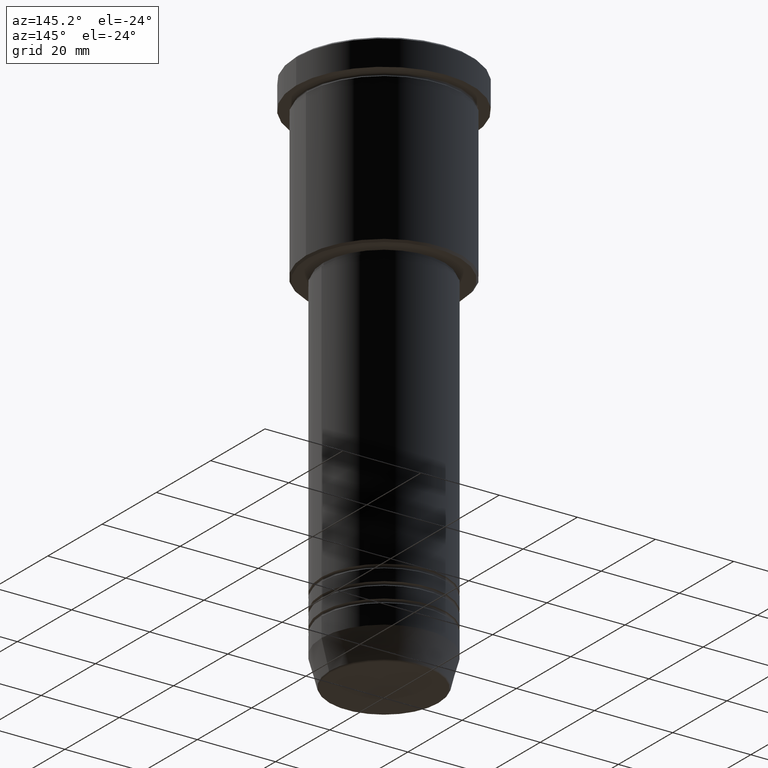
[diagram: clean part render]
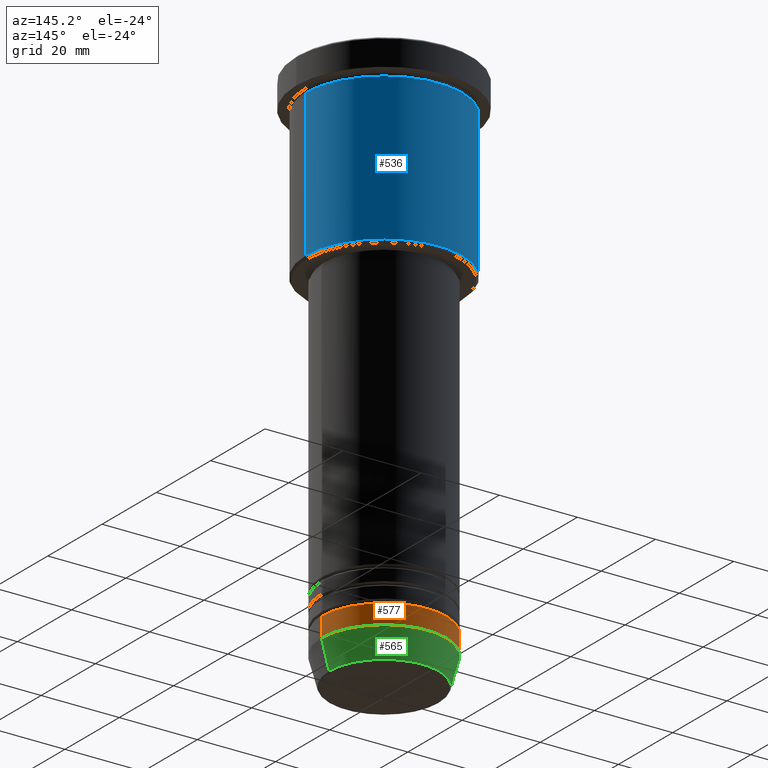
[diagram: same view with three faces highlighted in distinct colors, each labeled with its STEP entity id]
A machine part, auxiliary view with three faces highlighted in distinct colors.
Their STEP definitions:

[orange] entity #577 — the highlighted cylindrical surface (partial cylindrical patch) has radius 16 mm, axis along (-0, -0, 1).
#31 = DIRECTION ( 'NONE',  ( -0.000000000000000000, -0.000000000000000000, 1.000000000000000000 ) ) ;
#35 = ORIENTED_EDGE ( 'NONE', *, *, #638, .T. ) ;
#92 = FACE_OUTER_BOUND ( 'NONE', #1034, .T. ) ;
#139 = CARTESIAN_POINT ( 'NONE',  ( 0.000000000000000000, 0.000000000000000000, -127.5000000000000000 ) ) ;
#183 = AXIS2_PLACEMENT_3D ( 'NONE', #1097, #300, #394 ) ;
#193 = LINE ( 'NONE', #294, #977 ) ;
#199 = EDGE_CURVE ( 'NONE', #696, #1171, #235, .T. ) ;
#208 = CARTESIAN_POINT ( 'NONE',  ( 16.00000000000000000, 0.000000000000000000, 0.000000000000000000 ) ) ;
#211 = CARTESIAN_POINT ( 'NONE',  ( 0.000000000000000000, 0.000000000000000000, -132.5000000000000000 ) ) ;
#212 = EDGE_CURVE ( 'NONE', #1089, #696, #1138, .T. ) ;
#235 = CIRCLE ( 'NONE', #632, 16.00000000000000000 ) ;
#257 = DIRECTION ( 'NONE',  ( -0.000000000000000000, -0.000000000000000000, 1.000000000000000000 ) ) ;
#262 = ORIENTED_EDGE ( 'NONE', *, *, #212, .F. ) ;
#294 = CARTESIAN_POINT ( 'NONE',  ( -16.00000000000000000, 1.959434878635765131E-15, 0.000000000000000000 ) ) ;
#300 = DIRECTION ( 'NONE',  ( -0.000000000000000000, -0.000000000000000000, 1.000000000000000000 ) ) ;
#313 = CARTESIAN_POINT ( 'NONE',  ( 16.00000000000000000, 0.000000000000000000, -132.5000000000000000 ) ) ;
#321 = EDGE_CURVE ( 'NONE', #1162, #1171, #193, .T. ) ;
#389 = CYLINDRICAL_SURFACE ( 'NONE', #183, 16.00000000000000000 ) ;
#394 = DIRECTION ( 'NONE',  ( 1.000000000000000000, 0.000000000000000000, 0.000000000000000000 ) ) ;
#398 = CARTESIAN_POINT ( 'NONE',  ( -16.00000000000000000, 1.959434878635765131E-15, -132.5000000000000000 ) ) ;
#400 = DIRECTION ( 'NONE',  ( -0.000000000000000000, -0.000000000000000000, 1.000000000000000000 ) ) ;
#491 = CARTESIAN_POINT ( 'NONE',  ( 16.00000000000000000, 0.000000000000000000, -127.5000000000000000 ) ) ;
#550 = VECTOR ( 'NONE', #31, 1000.000000000000000 ) ;
#564 = AXIS2_PLACEMENT_3D ( 'NONE', #211, #575, #571 ) ;
#571 = DIRECTION ( 'NONE',  ( 1.000000000000000000, 0.000000000000000000, 0.000000000000000000 ) ) ;
#575 = DIRECTION ( 'NONE',  ( -0.000000000000000000, -0.000000000000000000, 1.000000000000000000 ) ) ;
#577 = ADVANCED_FACE ( 'NONE', ( #92 ), #389, .T. ) ;
#610 = ORIENTED_EDGE ( 'NONE', *, *, #199, .F. ) ;
#632 = AXIS2_PLACEMENT_3D ( 'NONE', #139, #257, #878 ) ;
#638 = EDGE_CURVE ( 'NONE', #1089, #1162, #722, .T. ) ;
#650 = ORIENTED_EDGE ( 'NONE', *, *, #321, .T. ) ;
#696 = VERTEX_POINT ( 'NONE', #491 ) ;
#722 = CIRCLE ( 'NONE', #564, 16.00000000000000000 ) ;
#762 = CARTESIAN_POINT ( 'NONE',  ( -16.00000000000000000, 1.959434878635765131E-15, -127.5000000000000000 ) ) ;
#878 = DIRECTION ( 'NONE',  ( 1.000000000000000000, 0.000000000000000000, 0.000000000000000000 ) ) ;
#977 = VECTOR ( 'NONE', #400, 1000.000000000000000 ) ;
#1034 = EDGE_LOOP ( 'NONE', ( #35, #650, #610, #262 ) ) ;
#1089 = VERTEX_POINT ( 'NONE', #313 ) ;
#1097 = CARTESIAN_POINT ( 'NONE',  ( 0.000000000000000000, 0.000000000000000000, 0.000000000000000000 ) ) ;
#1138 = LINE ( 'NONE', #208, #550 ) ;
#1162 = VERTEX_POINT ( 'NONE', #398 ) ;
#1171 = VERTEX_POINT ( 'NONE', #762 ) ;

[blue] entity #536 — the highlighted cylindrical surface (partial cylindrical patch) has radius 20 mm, axis along (-0, -0, 1).
#63 = CIRCLE ( 'NONE', #256, 20.00000000000000355 ) ;
#87 = FACE_OUTER_BOUND ( 'NONE', #1040, .T. ) ;
#138 = VERTEX_POINT ( 'NONE', #576 ) ;
#169 = DIRECTION ( 'NONE',  ( -1.000000000000000000, 0.000000000000000000, 0.000000000000000000 ) ) ;
#203 = CIRCLE ( 'NONE', #998, 20.00000000000000000 ) ;
#256 = AXIS2_PLACEMENT_3D ( 'NONE', #1148, #535, #169 ) ;
#275 = VERTEX_POINT ( 'NONE', #725 ) ;
#299 = VERTEX_POINT ( 'NONE', #375 ) ;
#306 = CARTESIAN_POINT ( 'NONE',  ( 20.00000000000000000, 0.000000000000000000, -7.999999999999994671 ) ) ;
#311 = DIRECTION ( 'NONE',  ( -0.000000000000000000, -0.000000000000000000, 1.000000000000000000 ) ) ;
#375 = CARTESIAN_POINT ( 'NONE',  ( -20.00000000000000000, 2.449293598294706513E-15, -7.999999999999994671 ) ) ;
#381 = CARTESIAN_POINT ( 'NONE',  ( 20.00000000000000355, 0.000000000000000000, 0.000000000000000000 ) ) ;
#493 = ORIENTED_EDGE ( 'NONE', *, *, #765, .T. ) ;
#535 = DIRECTION ( 'NONE',  ( -0.000000000000000000, -0.000000000000000000, 1.000000000000000000 ) ) ;
#536 = ADVANCED_FACE ( 'NONE', ( #87 ), #613, .T. ) ;
#576 = CARTESIAN_POINT ( 'NONE',  ( -20.00000000000000355, 2.449293598294706907E-15, -45.50000000000000000 ) ) ;
#586 = VERTEX_POINT ( 'NONE', #306 ) ;
#613 = CYLINDRICAL_SURFACE ( 'NONE', #1050, 20.00000000000000355 ) ;
#618 = ORIENTED_EDGE ( 'NONE', *, *, #927, .F. ) ;
#628 = DIRECTION ( 'NONE',  ( -0.000000000000000000, -0.000000000000000000, 1.000000000000000000 ) ) ;
#659 = DIRECTION ( 'NONE',  ( -0.000000000000000000, -0.000000000000000000, 1.000000000000000000 ) ) ;
#665 = EDGE_CURVE ( 'NONE', #138, #299, #1108, .T. ) ;
#689 = CARTESIAN_POINT ( 'NONE',  ( -20.00000000000000355, 2.449293598294706907E-15, 0.000000000000000000 ) ) ;
#725 = CARTESIAN_POINT ( 'NONE',  ( 20.00000000000000355, 0.000000000000000000, -45.50000000000000000 ) ) ;
#765 = EDGE_CURVE ( 'NONE', #275, #138, #63, .T. ) ;
#777 = CARTESIAN_POINT ( 'NONE',  ( 0.000000000000000000, 0.000000000000000000, -7.999999999999994671 ) ) ;
#779 = VECTOR ( 'NONE', #311, 1000.000000000000000 ) ;
#860 = ORIENTED_EDGE ( 'NONE', *, *, #1103, .F. ) ;
#861 = DIRECTION ( 'NONE',  ( -0.000000000000000000, -0.000000000000000000, 1.000000000000000000 ) ) ;
#927 = EDGE_CURVE ( 'NONE', #275, #586, #1076, .T. ) ;
#982 = ORIENTED_EDGE ( 'NONE', *, *, #665, .T. ) ;
#998 = AXIS2_PLACEMENT_3D ( 'NONE', #777, #861, #1102 ) ;
#1040 = EDGE_LOOP ( 'NONE', ( #493, #982, #860, #618 ) ) ;
#1050 = AXIS2_PLACEMENT_3D ( 'NONE', #1061, #659, #1151 ) ;
#1061 = CARTESIAN_POINT ( 'NONE',  ( 0.000000000000000000, 0.000000000000000000, 0.000000000000000000 ) ) ;
#1076 = LINE ( 'NONE', #381, #1144 ) ;
#1102 = DIRECTION ( 'NONE',  ( 1.000000000000000000, 0.000000000000000000, 0.000000000000000000 ) ) ;
#1103 = EDGE_CURVE ( 'NONE', #586, #299, #203, .T. ) ;
#1108 = LINE ( 'NONE', #689, #779 ) ;
#1144 = VECTOR ( 'NONE', #628, 1000.000000000000000 ) ;
#1148 = CARTESIAN_POINT ( 'NONE',  ( 0.000000000000000000, 0.000000000000000000, -45.50000000000000000 ) ) ;
#1151 = DIRECTION ( 'NONE',  ( 1.000000000000000000, 0.000000000000000000, 0.000000000000000000 ) ) ;

[green] entity #565 — the highlighted conical surface has half-angle 15 deg.
#24 = VERTEX_POINT ( 'NONE', #308 ) ;
#41 = CARTESIAN_POINT ( 'NONE',  ( -16.00000000000000000, 1.959434878635765131E-15, -132.5000000000000000 ) ) ;
#43 = CARTESIAN_POINT ( 'NONE',  ( 0.000000000000000000, 0.000000000000000000, -139.6294095225512706 ) ) ;
#76 = CARTESIAN_POINT ( 'NONE',  ( 14.08968047592163053, 0.000000000000000000, -139.6294095225512706 ) ) ;
#185 = DIRECTION ( 'NONE',  ( -0.000000000000000000, -0.000000000000000000, 1.000000000000000000 ) ) ;
#211 = CARTESIAN_POINT ( 'NONE',  ( 0.000000000000000000, 0.000000000000000000, -132.5000000000000000 ) ) ;
#274 = CARTESIAN_POINT ( 'NONE',  ( 0.000000000000000000, 0.000000000000000000, -132.5000000000000000 ) ) ;
#308 = CARTESIAN_POINT ( 'NONE',  ( -14.08968047592163053, 1.842461544110201663E-15, -139.6294095225512706 ) ) ;
#313 = CARTESIAN_POINT ( 'NONE',  ( 16.00000000000000000, 0.000000000000000000, -132.5000000000000000 ) ) ;
#382 = EDGE_CURVE ( 'NONE', #24, #1162, #641, .T. ) ;
#385 = EDGE_LOOP ( 'NONE', ( #856, #513, #469, #992 ) ) ;
#398 = CARTESIAN_POINT ( 'NONE',  ( -16.00000000000000000, 1.959434878635765131E-15, -132.5000000000000000 ) ) ;
#427 = VERTEX_POINT ( 'NONE', #76 ) ;
#452 = VECTOR ( 'NONE', #1121, 1000.000000000000000 ) ;
#469 = ORIENTED_EDGE ( 'NONE', *, *, #638, .F. ) ;
#513 = ORIENTED_EDGE ( 'NONE', *, *, #382, .T. ) ;
#551 = AXIS2_PLACEMENT_3D ( 'NONE', #43, #772, #1114 ) ;
#564 = AXIS2_PLACEMENT_3D ( 'NONE', #211, #575, #571 ) ;
#565 = ADVANCED_FACE ( 'NONE', ( #996 ), #614, .T. ) ;
#570 = LINE ( 'NONE', #1024, #931 ) ;
#571 = DIRECTION ( 'NONE',  ( 1.000000000000000000, 0.000000000000000000, 0.000000000000000000 ) ) ;
#575 = DIRECTION ( 'NONE',  ( -0.000000000000000000, -0.000000000000000000, 1.000000000000000000 ) ) ;
#598 = CIRCLE ( 'NONE', #551, 14.08968047592163053 ) ;
#614 = CONICAL_SURFACE ( 'NONE', #912, 16.00000000000000000, 0.2617993877991500740 ) ;
#638 = EDGE_CURVE ( 'NONE', #1089, #1162, #722, .T. ) ;
#641 = LINE ( 'NONE', #41, #452 ) ;
#672 = EDGE_CURVE ( 'NONE', #427, #24, #598, .T. ) ;
#722 = CIRCLE ( 'NONE', #564, 16.00000000000000000 ) ;
#772 = DIRECTION ( 'NONE',  ( -0.000000000000000000, -0.000000000000000000, 1.000000000000000000 ) ) ;
#844 = DIRECTION ( 'NONE',  ( 1.000000000000000000, 0.000000000000000000, 0.000000000000000000 ) ) ;
#856 = ORIENTED_EDGE ( 'NONE', *, *, #672, .T. ) ;
#912 = AXIS2_PLACEMENT_3D ( 'NONE', #274, #185, #844 ) ;
#931 = VECTOR ( 'NONE', #1107, 1000.000000000000000 ) ;
#992 = ORIENTED_EDGE ( 'NONE', *, *, #1093, .F. ) ;
#996 = FACE_OUTER_BOUND ( 'NONE', #385, .T. ) ;
#1024 = CARTESIAN_POINT ( 'NONE',  ( 16.00000000000000000, 0.000000000000000000, -132.5000000000000000 ) ) ;
#1089 = VERTEX_POINT ( 'NONE', #313 ) ;
#1093 = EDGE_CURVE ( 'NONE', #427, #1089, #570, .T. ) ;
#1107 = DIRECTION ( 'NONE',  ( 0.2588190451025213501, 0.000000000000000000, 0.9659258262890680902 ) ) ;
#1114 = DIRECTION ( 'NONE',  ( 1.000000000000000000, 0.000000000000000000, 0.000000000000000000 ) ) ;
#1121 = DIRECTION ( 'NONE',  ( -0.2588190451025213501, 3.169619151431772337E-17, 0.9659258262890680902 ) ) ;
#1162 = VERTEX_POINT ( 'NONE', #398 ) ;